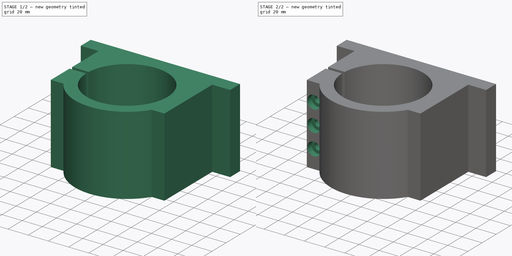
[diagram: build sequence overview — one tinted view per stage of 2, left to right]
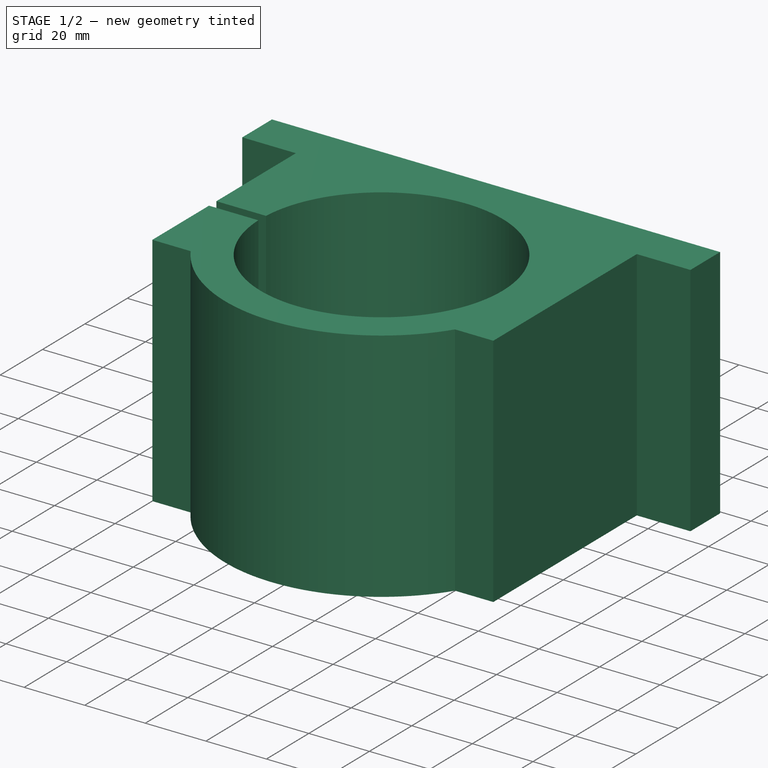
[diagram: stage 1 of 2 — iso view after this stage's code; geometry added in this stage tinted green]
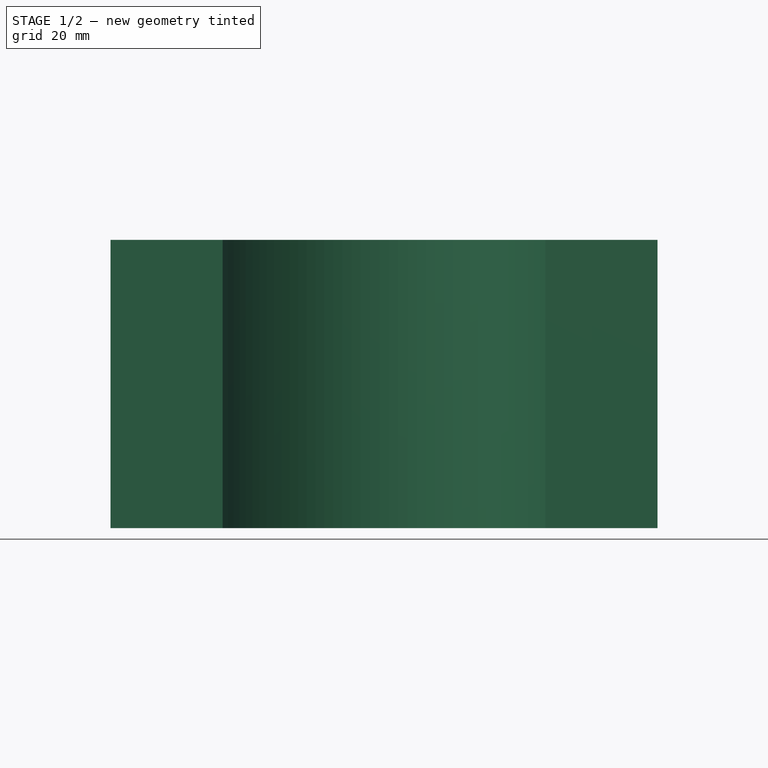
[diagram: stage 1 of 2 — front view after this stage's code; geometry added in this stage tinted green]
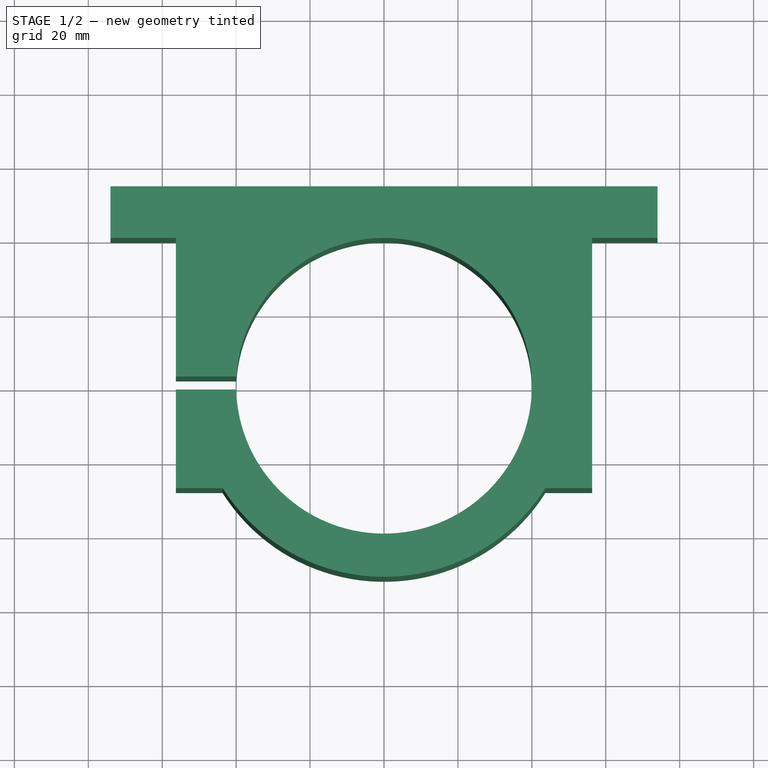
[diagram: stage 1 of 2 — top view after this stage's code; geometry added in this stage tinted green]
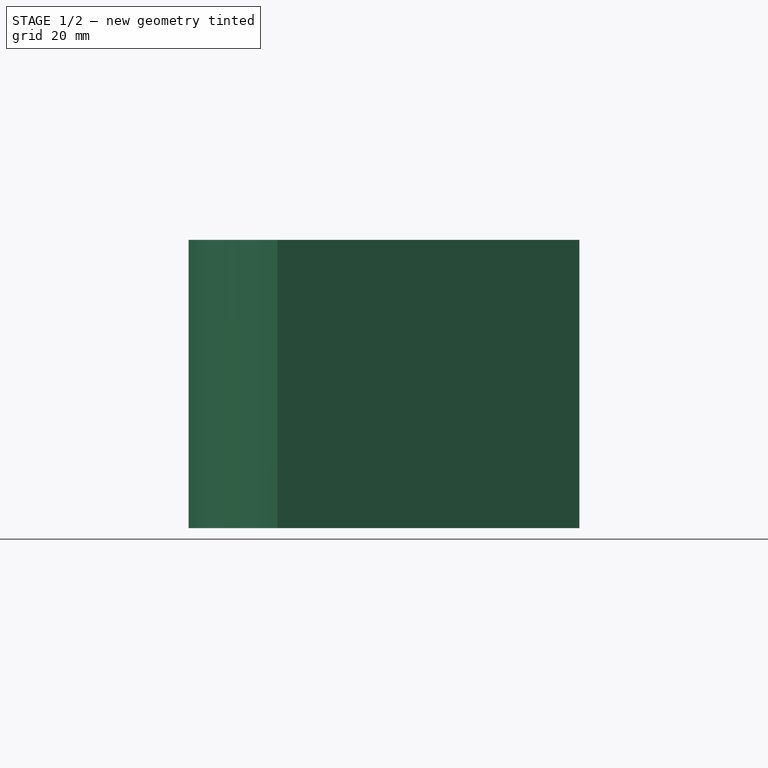
[diagram: stage 1 of 2 — right view after this stage's code; geometry added in this stage tinted green]
FCSTD DOCUMENT  (FreeCAD 2022.111R30764 (Git))
Label: Spindle_Bracket
License: All rights reserved
LicenseURL: http://en.wikipedia.org/wiki/All_rights_reserved
objects: Sketcher::SketchObject×4, PartDesign::Pocket×2, PartDesign::Pad×1, PartDesign::Hole×1, PartDesign::Body×1
note: 17 computed .brp shape members not serialized (recipe doc carries the construction recipe); baked Part::Feature solids carry a one-line shape summary decoded from their .brp

FEATURE [Sketcher::SketchObject] Sketch
  FullyConstrained = true
  MapMode = 5
  Support = -> [XY_Plane]
  TreeRank = 0
  sketch-geometry (12):
    g0: Circle CenterX=0 CenterY=0 CenterZ=0 NormalX=0 NormalY=0 NormalZ=1 AngleXU=0 Radius=40
    g1: ArcOfCircle CenterX=0 CenterY=0 CenterZ=0 NormalX=0 NormalY=0 NormalZ=1 AngleXU=0 Radius=51.7 StartAngle=3.70703 EndAngle=5.71775
    g2: LineSegment StartX=-74 StartY=54 StartZ=0 EndX=-74 EndY=40 EndZ=0
    g3: LineSegment StartX=-74 StartY=40 StartZ=0 EndX=-56.3 EndY=40 EndZ=0
    g4: LineSegment StartX=-56.3 StartY=40 StartZ=0 EndX=-56.3 EndY=-27.7 EndZ=0
    g5: LineSegment StartX=-56.3 StartY=-27.7 StartZ=0 EndX=-43.6532 EndY=-27.7 EndZ=0
    g6: LineSegment StartX=43.6532 StartY=-27.7 StartZ=0 EndX=56.3 EndY=-27.7 EndZ=0
    g7: LineSegment StartX=56.3 StartY=-27.7 StartZ=0 EndX=56.3 EndY=40 EndZ=0
    g8: LineSegment StartX=56.3 StartY=40 StartZ=0 EndX=74 EndY=40 EndZ=0
    g9: LineSegment StartX=74 StartY=40 StartZ=0 EndX=74 EndY=54 EndZ=0
    g10: LineSegment StartX=74 StartY=54 StartZ=0 EndX=-74 EndY=54 EndZ=0
    g11: LineSegment [constr] StartX=0 StartY=54 StartZ=0 EndX=0 EndY=40 EndZ=0
  constraints (36):
    c: Coincident(g0,g-1)
    c: Coincident(g1,g0)
    c: Vertical(g2)
    c: Coincident(g3,g2)
    c: Horizontal(g3)
    c: Coincident(g4,g3)
    c: Vertical(g4)
    c: Coincident(g5,g4)
    c: Horizontal(g5)
    c: Horizontal(g6)
    c: Coincident(g7,g6)
    c: Vertical(g7)
    c: Horizontal(g8)
    c: Vertical(g9)
    c: Coincident(g10,g2)
    c: Horizontal(g10)
    c: Coincident(g10,g9)
    c: Coincident(g8,g9)
    c: Coincident(g7,g8)
    c: Equal(g9,g2)
    c: Equal(g3,g8)
    c: Equal(g7,g4)
    c: Equal(g6,g5)
    c: Coincident(g1,g5)
    c: Coincident(g1,g6)
    c: DistanceX(g10,g10) = 148
    c: DistanceY(g2,g2) = 14
    c: DistanceY(g4,g4) = 67.7
    c: DistanceX(g3,g3) = 17.7
    c: Diameter(g0) = 80
    c: Diameter(g1) = 103.4
    c: Vertical(g11)
    c: DistanceY(g11,g11) = 14
    c: PointOnObject(g11,g0)
    c: PointOnObject(g11,g10)
    c: PointOnObject(g11,g-2)
FEATURE [PartDesign::Pad] Pad
  AddSubType = 0
  CheckUpToFaceLimits = true
  ClaimChildren = false
  Direction = (0,0,1)
  Fit = 0
  FitJoin = 0
  InnerFit = 0
  InnerFitJoin = 0
  InnerTaperAngle = 0
  InnerTaperAngleRev = 0
  Length = 78
  Length2 = 100
  NewSolid = false
  Profile = -> Sketch
  Suppress = false
  TreeRank = 0
  Type = 0
  _ProfileBasedVersion = 0
FEATURE [Sketcher::SketchObject] Sketch001
  ExternalGeometry = -> [Pad]
  FullyConstrained = true
  MapMode = 5
  Placement = pos=(-56.3,0,0) rot=(0.57735,-0.57735,-0.57735;2.0944rad)
  Support = -> [Pad]
  TreeRank = 0
  sketch-geometry (4):
    g0: LineSegment StartX=-2.5 StartY=78 StartZ=0 EndX=1 EndY=78 EndZ=0
    g1: LineSegment StartX=1 StartY=78 StartZ=0 EndX=1 EndY=0 EndZ=0
    g2: LineSegment StartX=1 StartY=0 StartZ=0 EndX=-2.5 EndY=0 EndZ=0
    g3: LineSegment StartX=-2.5 StartY=0 StartZ=0 EndX=-2.5 EndY=78 EndZ=0
  constraints (12):
    c: Coincident(g0,g1)
    c: Coincident(g1,g2)
    c: Coincident(g2,g3)
    c: Coincident(g3,g0)
    c: Horizontal(g0)
    c: Horizontal(g2)
    c: Vertical(g1)
    c: Vertical(g3)
    c: PointOnObject(g1,g-1)
    c: PointOnObject(g0,g-3)
    c: DistanceX(g0,g0) = 3.5
    c: Distance(g0,g-4) = 37.5
FEATURE [PartDesign::Pocket] Pocket
  AddSubType = 1
  BaseFeature = -> Pad
  CheckUpToFaceLimits = true
  ClaimChildren = false
  Fit = 0
  FitJoin = 0
  InnerFit = 0
  InnerFitJoin = 0
  InnerTaperAngle = 0
  InnerTaperAngleRev = 0
  Length = 0
  Length2 = 100
  NewSolid = false
  Profile = -> Sketch001
  Suppress = false
  TreeRank = 0
  Type = 3
  UpToFace = -> Pad [Face11]
  _ProfileBasedVersion = 0
  _Version = 0
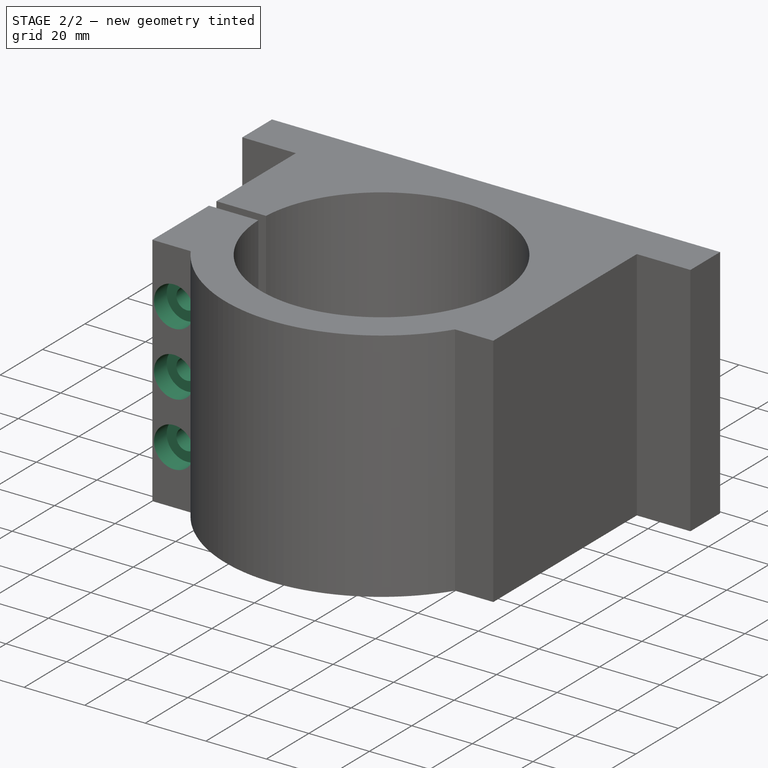
[diagram: stage 2 of 2 — iso view after this stage's code; geometry added in this stage tinted green]
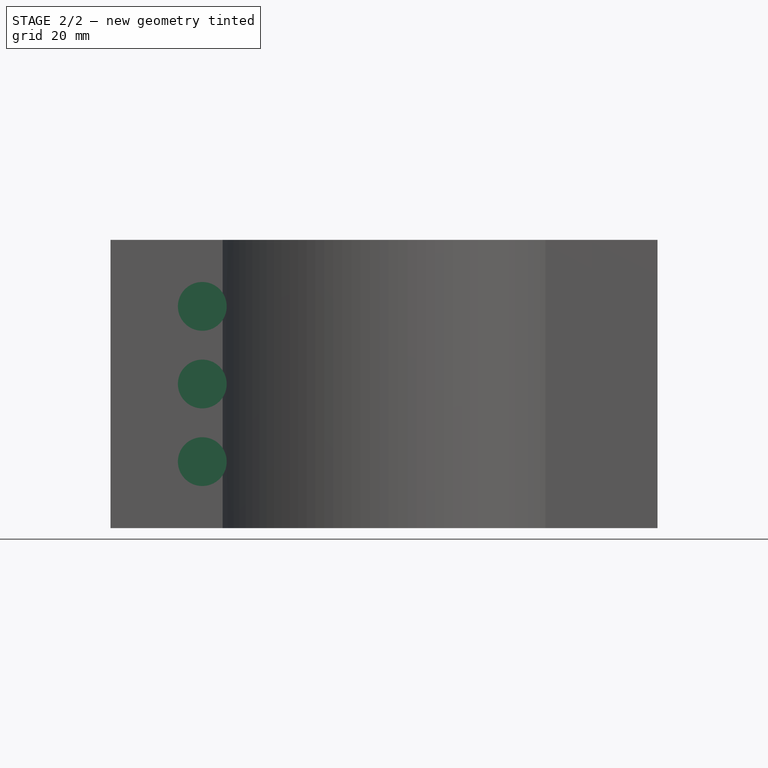
[diagram: stage 2 of 2 — front view after this stage's code; geometry added in this stage tinted green]
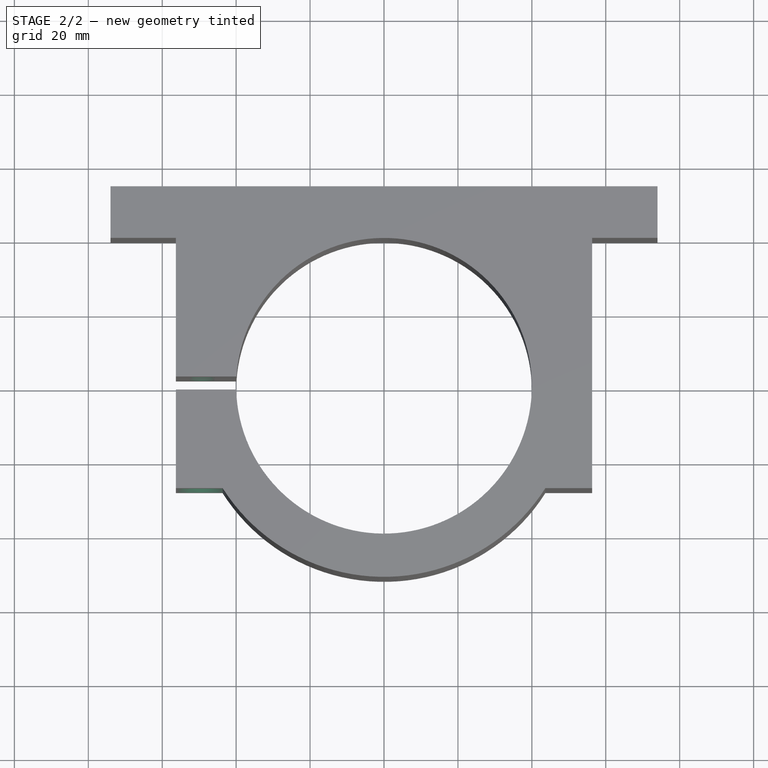
[diagram: stage 2 of 2 — top view after this stage's code; geometry added in this stage tinted green]
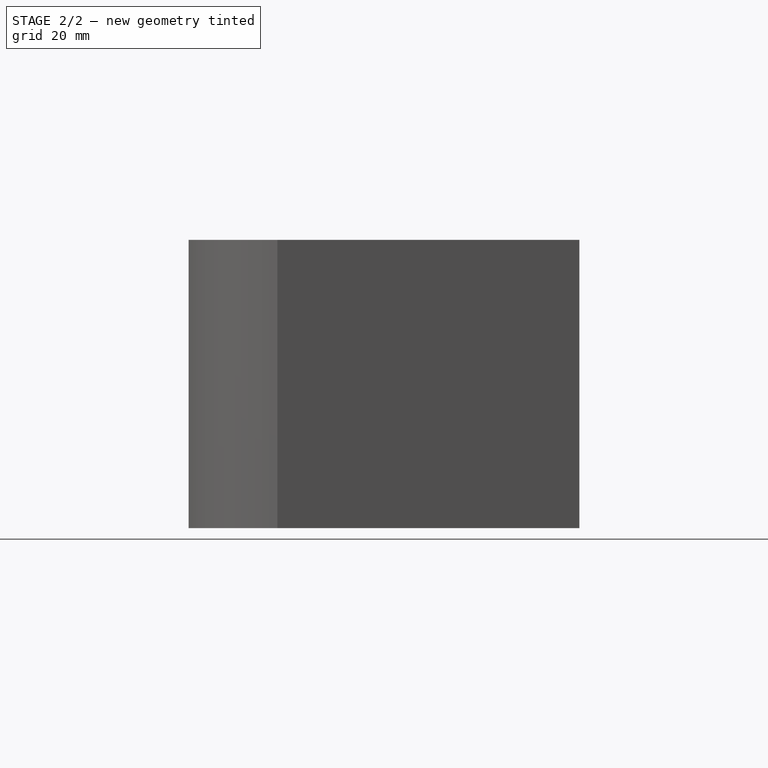
[diagram: stage 2 of 2 — right view after this stage's code; geometry added in this stage tinted green]
FEATURE [Sketcher::SketchObject] Sketch002
  ExternalGeometry = -> [Pocket]
  FullyConstrained = true
  MapMode = 5
  Placement = pos=(0,-27.7,0) rot=(1,0,0;1.5708rad)
  Support = -> [Pocket]
  TreeRank = 0
  sketch-geometry (7):
    g0: LineSegment [constr] StartX=-49.16 StartY=60 StartZ=0 EndX=-49.16 EndY=39 EndZ=0
    g1: LineSegment [constr] StartX=-49.16 StartY=39 StartZ=0 EndX=-49.16 EndY=18 EndZ=0
    g2: Circle CenterX=-49.16 CenterY=60 CenterZ=0 NormalX=0 NormalY=0 NormalZ=1 AngleXU=0 Radius=6.6
    g3: Circle CenterX=-49.16 CenterY=39 CenterZ=0 NormalX=0 NormalY=0 NormalZ=1 AngleXU=0 Radius=6.6
    g4: Circle CenterX=-49.16 CenterY=18 CenterZ=0 NormalX=0 NormalY=0 NormalZ=1 AngleXU=0 Radius=6.6
    g5: LineSegment [constr] StartX=-49.16 StartY=60 StartZ=0 EndX=-49.16 EndY=78 EndZ=0
    g6: LineSegment [constr] StartX=-49.16 StartY=39 StartZ=0 EndX=-43.6532 EndY=39 EndZ=0
  constraints (18):
    c: Vertical(g0)
    c: Coincident(g1,g0)
    c: Vertical(g1)
    c: Equal(g1,g0)
    c: Coincident(g2,g0)
    c: Coincident(g3,g0)
    c: Coincident(g4,g1)
    c: Equal(g4,g3)
    c: Equal(g3,g2)
    c: DistanceY(g0,g0) = 21
    c: Coincident(g5,g2)
    c: Vertical(g5)
    c: Coincident(g6,g3)
    c: Horizontal(g6)
    c: Symmetric(g-4,g-4,g6)
    c: Diameter(g2) = 13.2
    c: Distance(g5,g-3) = 7.14
    c: PointOnObject(g5,g-3)
FEATURE [PartDesign::Hole] Hole
  AddSubType = 1
  BaseFeature = -> Pocket
  ClaimChildren = false
  CustomThreadClearance = 0
  Depth = 37
  DepthType = 0
  Diameter = 6.8
  DrillForDepth = false
  DrillPoint = 0
  DrillPointAngle = 118
  Fit = 0
  FitJoin = 0
  HoleCutCountersinkAngle = 90
  HoleCutCustomValues = false
  HoleCutDepth = 6
  HoleCutDiameter = 13.2
  HoleCutType = 1
  InnerFit = 0
  InnerFitJoin = 0
  ModelThread = false
  NewSolid = false
  Profile = -> Sketch002
  Suppress = false
  Tapered = false
  TaperedAngle = 90
  ThreadClass = 0
  ThreadDepth = 23.5
  ThreadDepthType = 0
  ThreadDirection = 0
  ThreadFit = 0
  ThreadSize = 16
  ThreadType = 1
  Threaded = true
  TreeRank = 0
  UseCustomThreadClearance = false
  _ProfileBasedVersion = 0
FEATURE [Sketcher::SketchObject] Sketch003
  ExternalGeometry = -> [Hole]
  FullyConstrained = true
  MapMode = 5
  Placement = pos=(0,-21.7,4.8e-15) rot=(1,0,0;1.5708rad)
  Support = -> [Hole]
  TreeRank = 0
  sketch-geometry (3):
    g0: Circle CenterX=-49.16 CenterY=39 CenterZ=0 NormalX=0 NormalY=0 NormalZ=1 AngleXU=0 Radius=6.6
    g1: Circle CenterX=-49.16 CenterY=18 CenterZ=0 NormalX=0 NormalY=0 NormalZ=1 AngleXU=0 Radius=6.6
    g2: Circle CenterX=-49.16 CenterY=60 CenterZ=0 NormalX=0 NormalY=0 NormalZ=1 AngleXU=0 Radius=6.6
  constraints (6):
    c: Coincident(g0,g-4)
    c: Coincident(g1,g-5)
    c: Equal(g-4,g0)
    c: Equal(g-5,g1)
    c: Coincident(g2,g-3)
    c: Equal(g-3,g2)
FEATURE [PartDesign::Pocket] Pocket001
  AddSubType = 1
  BaseFeature = -> Hole
  CheckUpToFaceLimits = true
  ClaimChildren = false
  Fit = 0
  FitJoin = 0
  InnerFit = 0
  InnerFitJoin = 0
  InnerTaperAngle = 0
  InnerTaperAngleRev = 0
  Length = 13
  Length2 = 100
  NewSolid = false
  Profile = -> Sketch003
  Reversed = true
  Suppress = false
  TreeRank = 0
  Type = 0
  _ProfileBasedVersion = 0
  _Version = 0
FEATURE [PartDesign::Body] Body
  AutoGroupSolids = false
  ExportMode = 0
  Group = -> [Sketch,Pad,Sketch001,Pocket,Sketch002,Hole,Sketch003,Pocket001]
  Origin = -> Origin
  Tip = -> Pocket001
  TreeRank = 0
  _ExportChildren = -> [Pad,Pocket,Hole,Pocket001]
  _GroupVersion = 1
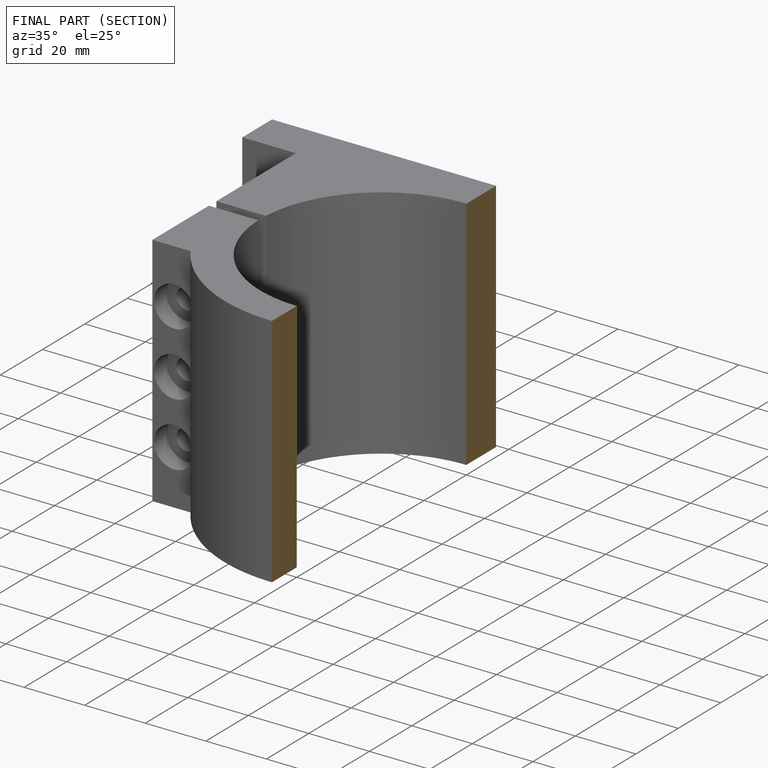
[diagram: finished part — half-section view (interior)]
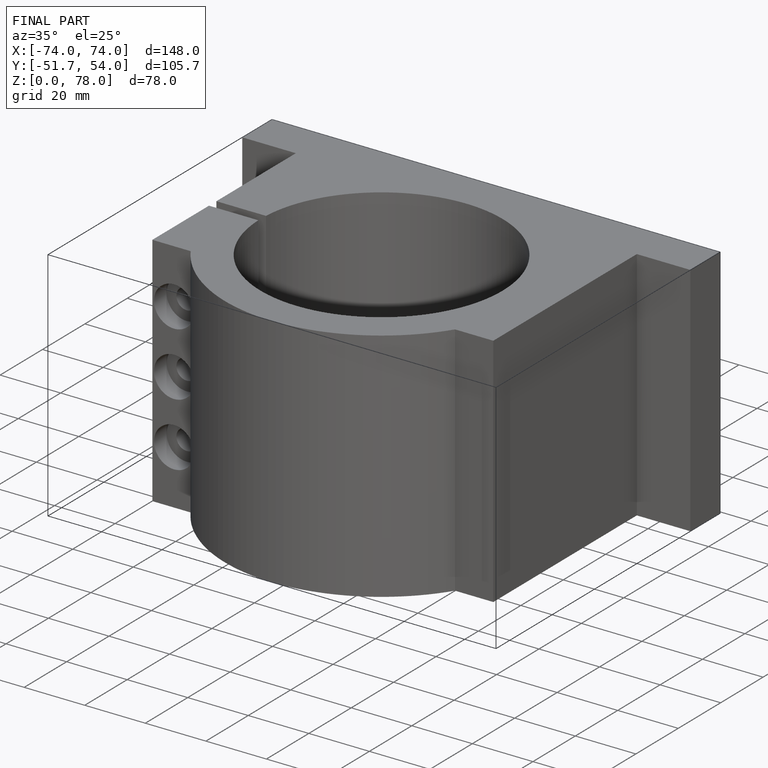
[diagram: finished part — iso view with bounding-box wireframe]
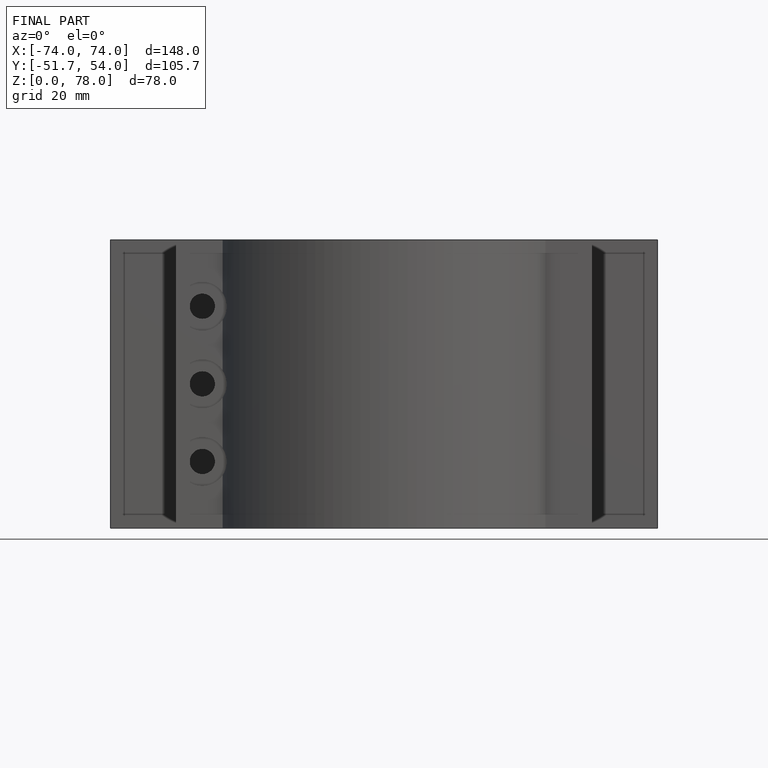
[diagram: finished part — front view with bounding-box wireframe]
